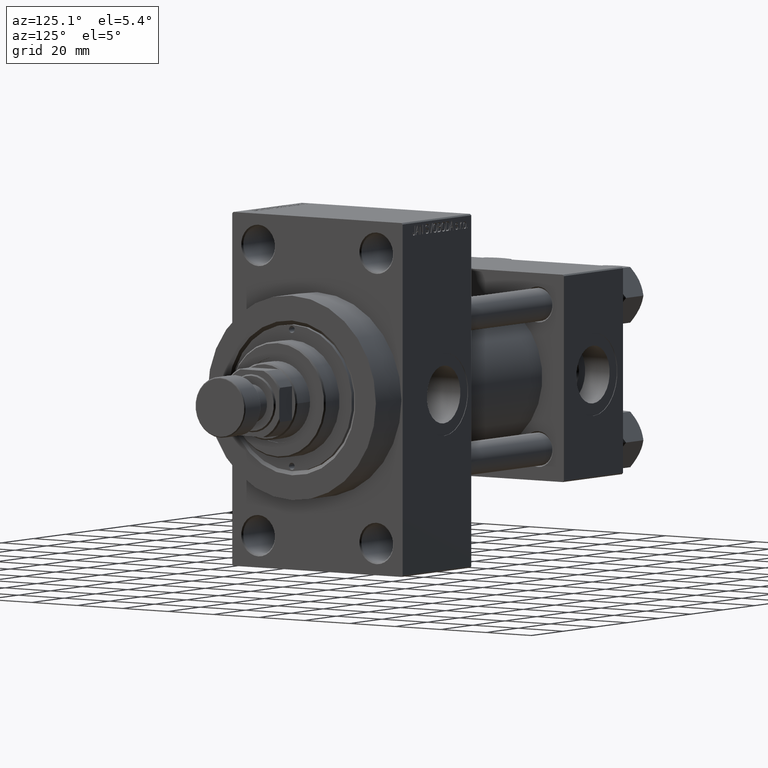
[diagram: clean part render]
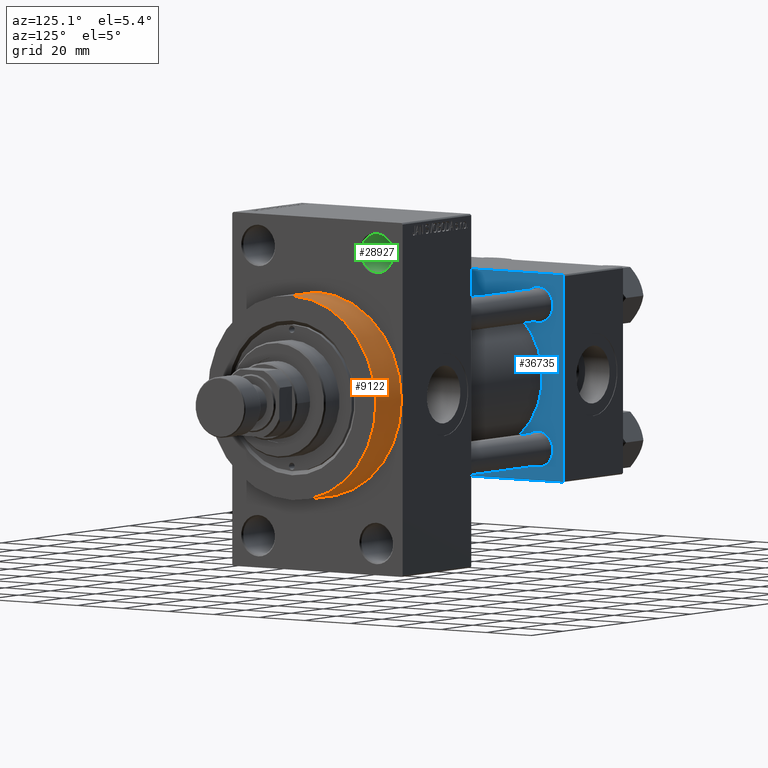
[diagram: same view with three faces highlighted in distinct colors, each labeled with its STEP entity id]
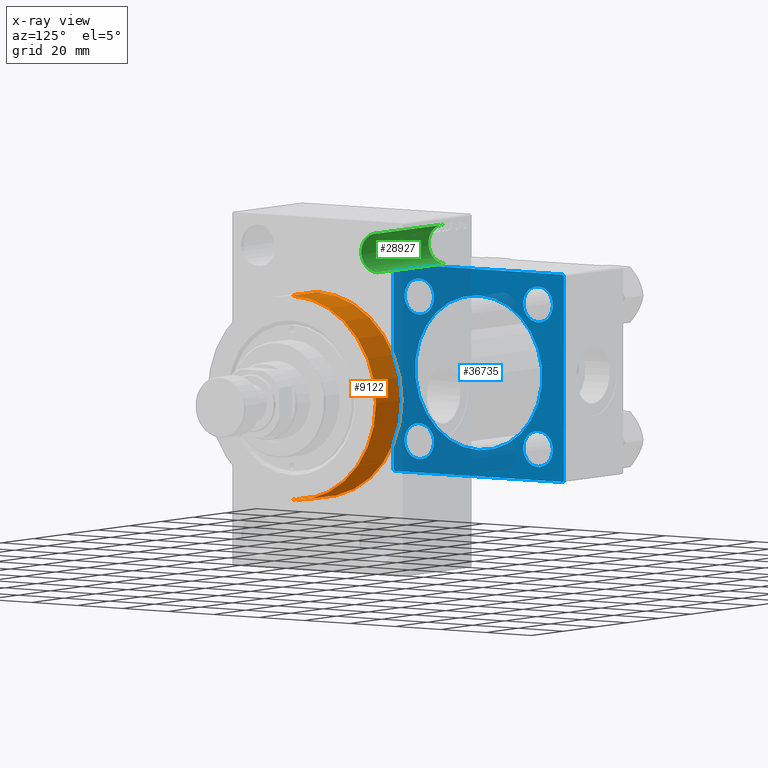
[diagram: x-ray of the same camera — body ghosted, the three highlighted faces saturated]
A machine part, auxiliary view with three faces highlighted in distinct colors.
The next image is the same camera in x-ray (body ghosted, the three faces saturated) — at least one of them is partly hidden behind the body in this view.
Their STEP definitions:

[orange] entity #9122 — the highlighted cylindrical surface (partial cylindrical patch) has radius 37 mm, axis along (-1, -0, -0).
#2574 = AXIS2_PLACEMENT_3D ( 'NONE', #11492, #17010, #4684 ) ;
#3325 = EDGE_CURVE ( 'NONE', #33051, #33673, #47542, .T. ) ;
#4684 = DIRECTION ( 'NONE',  ( 0.000000000000000000, 0.000000000000000000, 1.000000000000000000 ) ) ;
#4716 = DIRECTION ( 'NONE',  ( -1.000000000000000000, -0.000000000000000000, -0.000000000000000000 ) ) ;
#4932 = ORIENTED_EDGE ( 'NONE', *, *, #20818, .T. ) ;
#5206 = VERTEX_POINT ( 'NONE', #44620 ) ;
#6929 = VECTOR ( 'NONE', #19131, 1000.000000000000000 ) ;
#6994 = CARTESIAN_POINT ( 'NONE',  ( 138.0000000000000000, 4.531193156845206793E-15, -37.00000000000000000 ) ) ;
#7518 = LINE ( 'NONE', #38337, #6929 ) ;
#8858 = ORIENTED_EDGE ( 'NONE', *, *, #3325, .F. ) ;
#9122 = ADVANCED_FACE ( 'NONE', ( #49928 ), #46113, .T. ) ;
#10089 = VECTOR ( 'NONE', #4716, 1000.000000000000000 ) ;
#11366 = DIRECTION ( 'NONE',  ( 1.000000000000000000, 0.000000000000000000, 0.000000000000000000 ) ) ;
#11492 = CARTESIAN_POINT ( 'NONE',  ( 154.0000000000000284, 0.000000000000000000, 0.000000000000000000 ) ) ;
#17010 = DIRECTION ( 'NONE',  ( -1.000000000000000000, -0.000000000000000000, -0.000000000000000000 ) ) ;
#18185 = AXIS2_PLACEMENT_3D ( 'NONE', #32443, #47870, #40277 ) ;
#18198 = DIRECTION ( 'NONE',  ( 0.000000000000000000, 0.000000000000000000, -1.000000000000000000 ) ) ;
#18853 = EDGE_CURVE ( 'NONE', #33673, #5206, #27933, .T. ) ;
#19131 = DIRECTION ( 'NONE',  ( -1.000000000000000000, -0.000000000000000000, -0.000000000000000000 ) ) ;
#19948 = CIRCLE ( 'NONE', #18185, 37.00000000000000000 ) ;
#20818 = EDGE_CURVE ( 'NONE', #33051, #27402, #7518, .T. ) ;
#22102 = EDGE_LOOP ( 'NONE', ( #8858, #4932, #28263, #33657 ) ) ;
#24629 = EDGE_CURVE ( 'NONE', #27402, #5206, #19948, .T. ) ;
#24976 = AXIS2_PLACEMENT_3D ( 'NONE', #45989, #11366, #18198 ) ;
#27402 = VERTEX_POINT ( 'NONE', #6994 ) ;
#27933 = LINE ( 'NONE', #35513, #10089 ) ;
#28263 = ORIENTED_EDGE ( 'NONE', *, *, #24629, .T. ) ;
#29899 = CARTESIAN_POINT ( 'NONE',  ( 154.0000000000000284, 0.000000000000000000, 37.00000000000000000 ) ) ;
#32443 = CARTESIAN_POINT ( 'NONE',  ( 138.0000000000000000, 0.000000000000000000, 0.000000000000000000 ) ) ;
#33051 = VERTEX_POINT ( 'NONE', #47295 ) ;
#33657 = ORIENTED_EDGE ( 'NONE', *, *, #18853, .F. ) ;
#33673 = VERTEX_POINT ( 'NONE', #29899 ) ;
#35513 = CARTESIAN_POINT ( 'NONE',  ( 154.0000000000000284, 0.000000000000000000, 37.00000000000000000 ) ) ;
#38337 = CARTESIAN_POINT ( 'NONE',  ( 154.0000000000000284, 4.531193156845206793E-15, -37.00000000000000000 ) ) ;
#40277 = DIRECTION ( 'NONE',  ( 0.000000000000000000, 0.000000000000000000, -1.000000000000000000 ) ) ;
#44620 = CARTESIAN_POINT ( 'NONE',  ( 138.0000000000000000, 0.000000000000000000, 37.00000000000000000 ) ) ;
#45989 = CARTESIAN_POINT ( 'NONE',  ( 154.0000000000000284, 0.000000000000000000, 0.000000000000000000 ) ) ;
#46113 = CYLINDRICAL_SURFACE ( 'NONE', #2574, 37.00000000000000000 ) ;
#47295 = CARTESIAN_POINT ( 'NONE',  ( 154.0000000000000284, 4.531193156845206793E-15, -37.00000000000000000 ) ) ;
#47542 = CIRCLE ( 'NONE', #24976, 37.00000000000000000 ) ;
#47870 = DIRECTION ( 'NONE',  ( 1.000000000000000000, 0.000000000000000000, 0.000000000000000000 ) ) ;
#49928 = FACE_OUTER_BOUND ( 'NONE', #22102, .T. ) ;

[blue] entity #36735 — the highlighted planar face has unit normal (-1, 0, 0).
#44 = VECTOR ( 'NONE', #42766, 1000.000000000000000 ) ;
#152 = CIRCLE ( 'NONE', #26730, 6.500000000000002665 ) ;
#537 = VECTOR ( 'NONE', #25850, 1000.000000000000114 ) ;
#937 = AXIS2_PLACEMENT_3D ( 'NONE', #25381, #4937, #20328 ) ;
#1113 = EDGE_CURVE ( 'NONE', #4838, #47998, #41597, .T. ) ;
#1567 = CARTESIAN_POINT ( 'NONE',  ( 37.00000000000000000, 26.14999999999999858, -32.65000000000000568 ) ) ;
#2040 = AXIS2_PLACEMENT_3D ( 'NONE', #16489, #27625, #30926 ) ;
#2268 = ORIENTED_EDGE ( 'NONE', *, *, #31936, .T. ) ;
#2315 = DIRECTION ( 'NONE',  ( -1.000000000000000000, 0.000000000000000000, -0.000000000000000000 ) ) ;
#2575 = CIRCLE ( 'NONE', #37266, 6.500000000000002665 ) ;
#3687 = DIRECTION ( 'NONE',  ( -1.000000000000000000, 0.000000000000000000, -0.000000000000000000 ) ) ;
#3807 = CARTESIAN_POINT ( 'NONE',  ( 37.00000000000000000, -2.602085213965210642E-15, 0.000000000000000000 ) ) ;
#3996 = EDGE_CURVE ( 'NONE', #18641, #12945, #20948, .T. ) ;
#4787 = CARTESIAN_POINT ( 'NONE',  ( 37.00000000000000000, 26.14999999999999858, 26.15000000000000213 ) ) ;
#4838 = VERTEX_POINT ( 'NONE', #33555 ) ;
#4937 = DIRECTION ( 'NONE',  ( -1.000000000000000000, 0.000000000000000000, -0.000000000000000000 ) ) ;
#5230 = DIRECTION ( 'NONE',  ( -0.000000000000000000, 0.000000000000000000, 1.000000000000000000 ) ) ;
#6098 = VERTEX_POINT ( 'NONE', #38290 ) ;
#6790 = VECTOR ( 'NONE', #23469, 1000.000000000000000 ) ;
#6903 = CARTESIAN_POINT ( 'NONE',  ( 37.00000000000000000, 37.49999999999999289, -36.99999999999998579 ) ) ;
#7060 = EDGE_CURVE ( 'NONE', #12945, #18641, #8941, .T. ) ;
#7186 = VERTEX_POINT ( 'NONE', #24825 ) ;
#7405 = VECTOR ( 'NONE', #44615, 1000.000000000000000 ) ;
#7812 = ORIENTED_EDGE ( 'NONE', *, *, #35363, .T. ) ;
#7912 = LINE ( 'NONE', #38731, #33581 ) ;
#8005 = DIRECTION ( 'NONE',  ( -0.000000000000000000, -0.7071067811865474617, -0.7071067811865474617 ) ) ;
#8903 = VERTEX_POINT ( 'NONE', #9759 ) ;
#8941 = CIRCLE ( 'NONE', #937, 6.500000000000057732 ) ;
#9007 = VECTOR ( 'NONE', #8005, 1000.000000000000114 ) ;
#9125 = CARTESIAN_POINT ( 'NONE',  ( 37.00000000000000000, -26.14999999999999147, 26.15000000000000924 ) ) ;
#9164 = CARTESIAN_POINT ( 'NONE',  ( 37.00000000000000000, -37.50000000000000000, -37.00000000000003553 ) ) ;
#9268 = CIRCLE ( 'NONE', #37516, 28.00000000000000000 ) ;
#9480 = DIRECTION ( 'NONE',  ( 0.000000000000000000, 0.000000000000000000, 1.000000000000000000 ) ) ;
#9703 = DIRECTION ( 'NONE',  ( 0.000000000000000000, 0.000000000000000000, 1.000000000000000000 ) ) ;
#9759 = CARTESIAN_POINT ( 'NONE',  ( 37.00000000000000000, 26.14999999999999858, 19.64999999999999858 ) ) ;
#10292 = CARTESIAN_POINT ( 'NONE',  ( 37.00000000000000000, 8.269258236473776482E-16, -28.00000000000000000 ) ) ;
#10960 = CIRCLE ( 'NONE', #46458, 6.500000000000064837 ) ;
#11253 = AXIS2_PLACEMENT_3D ( 'NONE', #29656, #45068, #9703 ) ;
#11593 = ORIENTED_EDGE ( 'NONE', *, *, #1113, .T. ) ;
#11830 = DIRECTION ( 'NONE',  ( 1.000000000000000000, -0.000000000000000000, 0.000000000000000000 ) ) ;
#12220 = AXIS2_PLACEMENT_3D ( 'NONE', #30083, #45497, #17453 ) ;
#12717 = EDGE_CURVE ( 'NONE', #30665, #37672, #35285, .T. ) ;
#12945 = VERTEX_POINT ( 'NONE', #27193 ) ;
#13246 = CARTESIAN_POINT ( 'NONE',  ( 37.00000000000000000, 36.99999999999999289, 37.50000000000000000 ) ) ;
#13252 = CIRCLE ( 'NONE', #41502, 28.00000000000000000 ) ;
#13274 = CARTESIAN_POINT ( 'NONE',  ( 37.00000000000000000, 0.000000000000000000, 0.000000000000000000 ) ) ;
#13362 = CARTESIAN_POINT ( 'NONE',  ( 37.00000000000000000, -37.00000000000002132, -37.50000000000000711 ) ) ;
#14342 = EDGE_LOOP ( 'NONE', ( #44437, #34892 ) ) ;
#15382 = DIRECTION ( 'NONE',  ( 0.000000000000000000, 0.000000000000000000, 1.000000000000000000 ) ) ;
#15502 = ORIENTED_EDGE ( 'NONE', *, *, #21256, .T. ) ;
#15617 = CARTESIAN_POINT ( 'NONE',  ( 37.00000000000000000, -2.602085213965210642E-15, 0.000000000000000000 ) ) ;
#15836 = FACE_BOUND ( 'NONE', #40128, .T. ) ;
#16489 = CARTESIAN_POINT ( 'NONE',  ( 37.00000000000000000, -26.14999999999999147, 26.15000000000000924 ) ) ;
#17354 = CARTESIAN_POINT ( 'NONE',  ( 37.00000000000000000, -26.14999999999999147, 32.65000000000007674 ) ) ;
#17453 = DIRECTION ( 'NONE',  ( 0.000000000000000000, 0.000000000000000000, 1.000000000000000000 ) ) ;
#17661 = EDGE_LOOP ( 'NONE', ( #46198, #20596 ) ) ;
#18452 = EDGE_CURVE ( 'NONE', #29305, #6098, #13252, .T. ) ;
#18641 = VERTEX_POINT ( 'NONE', #29197 ) ;
#19099 = CARTESIAN_POINT ( 'NONE',  ( 37.00000000000000000, 36.99999999999999289, 37.50000000000000000 ) ) ;
#19145 = EDGE_CURVE ( 'NONE', #43211, #25864, #27040, .T. ) ;
#19508 = LINE ( 'NONE', #27087, #29253 ) ;
#19641 = FACE_BOUND ( 'NONE', #17661, .T. ) ;
#19679 = LINE ( 'NONE', #23721, #6790 ) ;
#19691 = DIRECTION ( 'NONE',  ( -1.000000000000000000, 0.000000000000000000, -0.000000000000000000 ) ) ;
#20073 = DIRECTION ( 'NONE',  ( 0.000000000000000000, 0.000000000000000000, 1.000000000000000000 ) ) ;
#20328 = DIRECTION ( 'NONE',  ( 0.000000000000000000, 0.000000000000000000, 1.000000000000000000 ) ) ;
#20426 = VERTEX_POINT ( 'NONE', #34598 ) ;
#20596 = ORIENTED_EDGE ( 'NONE', *, *, #32597, .T. ) ;
#20815 = DIRECTION ( 'NONE',  ( -1.000000000000000000, 0.000000000000000000, -0.000000000000000000 ) ) ;
#20948 = CIRCLE ( 'NONE', #11253, 6.500000000000057732 ) ;
#21256 = EDGE_CURVE ( 'NONE', #25864, #43211, #10960, .T. ) ;
#21573 = ORIENTED_EDGE ( 'NONE', *, *, #7060, .T. ) ;
#21958 = AXIS2_PLACEMENT_3D ( 'NONE', #13274, #40321, #5230 ) ;
#22053 = LINE ( 'NONE', #6903, #537 ) ;
#22637 = EDGE_CURVE ( 'NONE', #20426, #7186, #22053, .T. ) ;
#22780 = VERTEX_POINT ( 'NONE', #1567 ) ;
#23084 = CARTESIAN_POINT ( 'NONE',  ( 37.00000000000000000, -37.00000000000002132, -37.50000000000000711 ) ) ;
#23469 = DIRECTION ( 'NONE',  ( 0.000000000000000000, -1.000000000000000000, -9.251858538542972814E-17 ) ) ;
#23682 = PLANE ( 'NONE',  #21958 ) ;
#23721 = CARTESIAN_POINT ( 'NONE',  ( 37.00000000000000000, 37.49999999999999289, -37.50000000000000000 ) ) ;
#24825 = CARTESIAN_POINT ( 'NONE',  ( 37.00000000000000000, 37.49999999999999289, -36.99999999999998579 ) ) ;
#25156 = AXIS2_PLACEMENT_3D ( 'NONE', #40013, #20815, #20073 ) ;
#25381 = CARTESIAN_POINT ( 'NONE',  ( 37.00000000000000000, -26.14999999999999147, -26.15000000000000924 ) ) ;
#25850 = DIRECTION ( 'NONE',  ( -0.000000000000000000, 0.7071067811865474617, 0.7071067811865474617 ) ) ;
#25864 = VERTEX_POINT ( 'NONE', #30592 ) ;
#26730 = AXIS2_PLACEMENT_3D ( 'NONE', #38284, #3687, #34732 ) ;
#27040 = CIRCLE ( 'NONE', #2040, 6.500000000000064837 ) ;
#27087 = CARTESIAN_POINT ( 'NONE',  ( 37.00000000000000000, 37.49999999999999289, 37.50000000000000000 ) ) ;
#27193 = CARTESIAN_POINT ( 'NONE',  ( 37.00000000000000000, -26.14999999999999147, -19.64999999999995239 ) ) ;
#27608 = LINE ( 'NONE', #23084, #44 ) ;
#27625 = DIRECTION ( 'NONE',  ( -1.000000000000000000, 0.000000000000000000, -0.000000000000000000 ) ) ;
#27776 = EDGE_CURVE ( 'NONE', #39930, #39301, #27608, .T. ) ;
#27879 = ORIENTED_EDGE ( 'NONE', *, *, #27776, .T. ) ;
#28061 = ORIENTED_EDGE ( 'NONE', *, *, #22637, .T. ) ;
#28823 = DIRECTION ( 'NONE',  ( 0.000000000000000000, 0.000000000000000000, 1.000000000000000000 ) ) ;
#29197 = CARTESIAN_POINT ( 'NONE',  ( 37.00000000000000000, -26.14999999999999147, -32.65000000000006963 ) ) ;
#29253 = VECTOR ( 'NONE', #31621, 1000.000000000000000 ) ;
#29305 = VERTEX_POINT ( 'NONE', #10292 ) ;
#29450 = CARTESIAN_POINT ( 'NONE',  ( 37.00000000000000000, -37.50000000000000711, 37.49999999999999289 ) ) ;
#29656 = CARTESIAN_POINT ( 'NONE',  ( 37.00000000000000000, -26.14999999999999147, -26.15000000000000924 ) ) ;
#30020 = CIRCLE ( 'NONE', #25156, 6.500000000000002665 ) ;
#30083 = CARTESIAN_POINT ( 'NONE',  ( 37.00000000000000000, 26.14999999999999858, 26.15000000000000213 ) ) ;
#30201 = LINE ( 'NONE', #29450, #7405 ) ;
#30592 = CARTESIAN_POINT ( 'NONE',  ( 37.00000000000000000, -26.14999999999999147, 19.64999999999994529 ) ) ;
#30665 = VERTEX_POINT ( 'NONE', #45112 ) ;
#30818 = CARTESIAN_POINT ( 'NONE',  ( 37.00000000000000000, -37.50000000000000711, 36.99999999999999289 ) ) ;
#30926 = DIRECTION ( 'NONE',  ( 0.000000000000000000, 0.000000000000000000, 1.000000000000000000 ) ) ;
#31092 = ORIENTED_EDGE ( 'NONE', *, *, #37341, .T. ) ;
#31258 = FACE_BOUND ( 'NONE', #14342, .T. ) ;
#31472 = EDGE_CURVE ( 'NONE', #22780, #39061, #152, .T. ) ;
#31621 = DIRECTION ( 'NONE',  ( 0.000000000000000000, -1.000000000000000000, -9.251858538542971581E-17 ) ) ;
#31936 = EDGE_CURVE ( 'NONE', #44962, #8903, #38027, .T. ) ;
#32393 = EDGE_CURVE ( 'NONE', #37672, #39930, #30201, .T. ) ;
#32597 = EDGE_CURVE ( 'NONE', #39061, #22780, #30020, .T. ) ;
#33097 = ORIENTED_EDGE ( 'NONE', *, *, #19145, .T. ) ;
#33555 = CARTESIAN_POINT ( 'NONE',  ( 37.00000000000000000, 37.49999999999999289, 37.00000000000000000 ) ) ;
#33581 = VECTOR ( 'NONE', #43018, 1000.000000000000000 ) ;
#34598 = CARTESIAN_POINT ( 'NONE',  ( 37.00000000000000000, 36.99999999999997868, -37.50000000000000000 ) ) ;
#34732 = DIRECTION ( 'NONE',  ( 0.000000000000000000, 0.000000000000000000, 1.000000000000000000 ) ) ;
#34839 = DIRECTION ( 'NONE',  ( 0.000000000000000000, 0.000000000000000000, 1.000000000000000000 ) ) ;
#34892 = ORIENTED_EDGE ( 'NONE', *, *, #18452, .F. ) ;
#35043 = FACE_BOUND ( 'NONE', #42631, .T. ) ;
#35285 = LINE ( 'NONE', #42613, #9007 ) ;
#35363 = EDGE_CURVE ( 'NONE', #8903, #44962, #2575, .T. ) ;
#35622 = ORIENTED_EDGE ( 'NONE', *, *, #12717, .T. ) ;
#36735 = ADVANCED_FACE ( 'NONE', ( #46424, #19641, #35043, #15836, #31258, #46679 ), #23682, .F. ) ;
#37266 = AXIS2_PLACEMENT_3D ( 'NONE', #4787, #19691, #34839 ) ;
#37341 = EDGE_CURVE ( 'NONE', #47998, #30665, #19508, .T. ) ;
#37434 = ORIENTED_EDGE ( 'NONE', *, *, #45960, .F. ) ;
#37516 = AXIS2_PLACEMENT_3D ( 'NONE', #15617, #11830, #9480 ) ;
#37672 = VERTEX_POINT ( 'NONE', #30818 ) ;
#38027 = CIRCLE ( 'NONE', #12220, 6.500000000000002665 ) ;
#38146 = ORIENTED_EDGE ( 'NONE', *, *, #40352, .F. ) ;
#38284 = CARTESIAN_POINT ( 'NONE',  ( 37.00000000000000000, 26.14999999999999858, -26.15000000000000213 ) ) ;
#38290 = CARTESIAN_POINT ( 'NONE',  ( 37.00000000000000000, -2.602085213965210642E-15, 28.00000000000000000 ) ) ;
#38731 = CARTESIAN_POINT ( 'NONE',  ( 37.00000000000000000, 37.49999999999999289, 37.50000000000000000 ) ) ;
#39061 = VERTEX_POINT ( 'NONE', #45014 ) ;
#39301 = VERTEX_POINT ( 'NONE', #13362 ) ;
#39930 = VERTEX_POINT ( 'NONE', #9164 ) ;
#40013 = CARTESIAN_POINT ( 'NONE',  ( 37.00000000000000000, 26.14999999999999858, -26.15000000000000213 ) ) ;
#40128 = EDGE_LOOP ( 'NONE', ( #7812, #2268 ) ) ;
#40321 = DIRECTION ( 'NONE',  ( -1.000000000000000000, 0.000000000000000000, -0.000000000000000000 ) ) ;
#40352 = EDGE_CURVE ( 'NONE', #20426, #39301, #19679, .T. ) ;
#41378 = ORIENTED_EDGE ( 'NONE', *, *, #3996, .T. ) ;
#41502 = AXIS2_PLACEMENT_3D ( 'NONE', #3807, #45226, #15382 ) ;
#41597 = LINE ( 'NONE', #19099, #42484 ) ;
#42177 = EDGE_CURVE ( 'NONE', #6098, #29305, #9268, .T. ) ;
#42484 = VECTOR ( 'NONE', #49951, 1000.000000000000114 ) ;
#42613 = CARTESIAN_POINT ( 'NONE',  ( 37.00000000000000000, -37.50000000000000711, 36.99999999999999289 ) ) ;
#42631 = EDGE_LOOP ( 'NONE', ( #15502, #33097 ) ) ;
#42766 = DIRECTION ( 'NONE',  ( 0.000000000000000000, 0.7071067811865524577, -0.7071067811865426878 ) ) ;
#43018 = DIRECTION ( 'NONE',  ( 0.000000000000000000, 0.000000000000000000, -1.000000000000000000 ) ) ;
#43211 = VERTEX_POINT ( 'NONE', #17354 ) ;
#43563 = CARTESIAN_POINT ( 'NONE',  ( 37.00000000000000000, 26.14999999999999858, 32.65000000000001279 ) ) ;
#44041 = ORIENTED_EDGE ( 'NONE', *, *, #32393, .T. ) ;
#44217 = EDGE_LOOP ( 'NONE', ( #41378, #21573 ) ) ;
#44437 = ORIENTED_EDGE ( 'NONE', *, *, #42177, .F. ) ;
#44615 = DIRECTION ( 'NONE',  ( 0.000000000000000000, 9.251858538542971581E-17, -1.000000000000000000 ) ) ;
#44962 = VERTEX_POINT ( 'NONE', #43563 ) ;
#45014 = CARTESIAN_POINT ( 'NONE',  ( 37.00000000000000000, 26.14999999999999858, -19.65000000000000213 ) ) ;
#45068 = DIRECTION ( 'NONE',  ( -1.000000000000000000, 0.000000000000000000, -0.000000000000000000 ) ) ;
#45112 = CARTESIAN_POINT ( 'NONE',  ( 37.00000000000000000, -37.00000000000000711, 37.49999999999999289 ) ) ;
#45226 = DIRECTION ( 'NONE',  ( 1.000000000000000000, -0.000000000000000000, 0.000000000000000000 ) ) ;
#45497 = DIRECTION ( 'NONE',  ( -1.000000000000000000, 0.000000000000000000, -0.000000000000000000 ) ) ;
#45960 = EDGE_CURVE ( 'NONE', #4838, #7186, #7912, .T. ) ;
#46198 = ORIENTED_EDGE ( 'NONE', *, *, #31472, .T. ) ;
#46424 = FACE_BOUND ( 'NONE', #44217, .T. ) ;
#46458 = AXIS2_PLACEMENT_3D ( 'NONE', #9125, #2315, #28823 ) ;
#46679 = FACE_OUTER_BOUND ( 'NONE', #49700, .T. ) ;
#47998 = VERTEX_POINT ( 'NONE', #13246 ) ;
#49700 = EDGE_LOOP ( 'NONE', ( #38146, #28061, #37434, #11593, #31092, #35622, #44041, #27879 ) ) ;
#49951 = DIRECTION ( 'NONE',  ( 0.000000000000000000, -0.7071067811865474617, 0.7071067811865474617 ) ) ;

[green] entity #28927 — the highlighted cylindrical surface (edge-blend (fillet) strip) has radius 7 mm, axis along (1, 0, 0).
#65 = ORIENTED_EDGE ( 'NONE', *, *, #7282, .T. ) ;
#1769 = ORIENTED_EDGE ( 'NONE', *, *, #9519, .F. ) ;
#1792 = CARTESIAN_POINT ( 'NONE',  ( 75.20101012677666574, 26.00000000000000000, 52.49999999999999289 ) ) ;
#6132 = CARTESIAN_POINT ( 'NONE',  ( 137.5000000000000000, 26.00000000000000000, 59.49999999999999289 ) ) ;
#7282 = EDGE_CURVE ( 'NONE', #31075, #19213, #33489, .T. ) ;
#9519 = EDGE_CURVE ( 'NONE', #12074, #39555, #29591, .T. ) ;
#9925 = ORIENTED_EDGE ( 'NONE', *, *, #39842, .T. ) ;
#10245 = CARTESIAN_POINT ( 'NONE',  ( 75.20101012677666574, 26.00000000000000000, 59.49999999999999289 ) ) ;
#11347 = EDGE_CURVE ( 'NONE', #19213, #39555, #31697, .T. ) ;
#11840 = DIRECTION ( 'NONE',  ( 0.000000000000000000, 0.000000000000000000, 1.000000000000000000 ) ) ;
#12074 = VERTEX_POINT ( 'NONE', #39929 ) ;
#13436 = DIRECTION ( 'NONE',  ( -1.000000000000000000, -0.000000000000000000, -0.000000000000000000 ) ) ;
#16372 = CARTESIAN_POINT ( 'NONE',  ( 137.5000000000000000, 26.00000000000000000, 52.49999999999999289 ) ) ;
#18912 = CARTESIAN_POINT ( 'NONE',  ( 137.5000000000000000, 26.00000000000000000, 45.49999999999999289 ) ) ;
#19213 = VERTEX_POINT ( 'NONE', #6132 ) ;
#21321 = ORIENTED_EDGE ( 'NONE', *, *, #11347, .T. ) ;
#22505 = EDGE_LOOP ( 'NONE', ( #9925, #65, #21321, #1769 ) ) ;
#22837 = AXIS2_PLACEMENT_3D ( 'NONE', #16372, #43161, #11840 ) ;
#24029 = CYLINDRICAL_SURFACE ( 'NONE', #26655, 6.999999999999999112 ) ;
#24774 = DIRECTION ( 'NONE',  ( 1.000000000000000000, -0.000000000000000000, -0.000000000000000000 ) ) ;
#26655 = AXIS2_PLACEMENT_3D ( 'NONE', #1792, #24774, #35879 ) ;
#27700 = AXIS2_PLACEMENT_3D ( 'NONE', #40473, #13436, #44273 ) ;
#28927 = ADVANCED_FACE ( 'NONE', ( #39920 ), #24029, .F. ) ;
#29591 = LINE ( 'NONE', #45002, #43709 ) ;
#29944 = VECTOR ( 'NONE', #37028, 1000.000000000000000 ) ;
#31075 = VERTEX_POINT ( 'NONE', #36656 ) ;
#31697 = CIRCLE ( 'NONE', #22837, 6.999999999999999112 ) ;
#33489 = LINE ( 'NONE', #10245, #29944 ) ;
#35879 = DIRECTION ( 'NONE',  ( 0.000000000000000000, 0.000000000000000000, -1.000000000000000000 ) ) ;
#36656 = CARTESIAN_POINT ( 'NONE',  ( 95.49999999999997158, 26.00000000000000000, 59.49999999999999289 ) ) ;
#37028 = DIRECTION ( 'NONE',  ( 1.000000000000000000, -0.000000000000000000, -0.000000000000000000 ) ) ;
#39555 = VERTEX_POINT ( 'NONE', #18912 ) ;
#39842 = EDGE_CURVE ( 'NONE', #12074, #31075, #49511, .T. ) ;
#39920 = FACE_OUTER_BOUND ( 'NONE', #22505, .T. ) ;
#39929 = CARTESIAN_POINT ( 'NONE',  ( 95.49999999999997158, 26.00000000000000000, 45.49999999999999289 ) ) ;
#40473 = CARTESIAN_POINT ( 'NONE',  ( 95.49999999999997158, 26.00000000000000000, 52.49999999999999289 ) ) ;
#40957 = DIRECTION ( 'NONE',  ( 1.000000000000000000, -0.000000000000000000, -0.000000000000000000 ) ) ;
#43161 = DIRECTION ( 'NONE',  ( 1.000000000000000000, 0.000000000000000000, 0.000000000000000000 ) ) ;
#43709 = VECTOR ( 'NONE', #40957, 1000.000000000000000 ) ;
#44273 = DIRECTION ( 'NONE',  ( 0.000000000000000000, 0.000000000000000000, 1.000000000000000000 ) ) ;
#45002 = CARTESIAN_POINT ( 'NONE',  ( 75.20101012677666574, 26.00000000000000000, 45.49999999999999289 ) ) ;
#49511 = CIRCLE ( 'NONE', #27700, 6.999999999999999112 ) ;